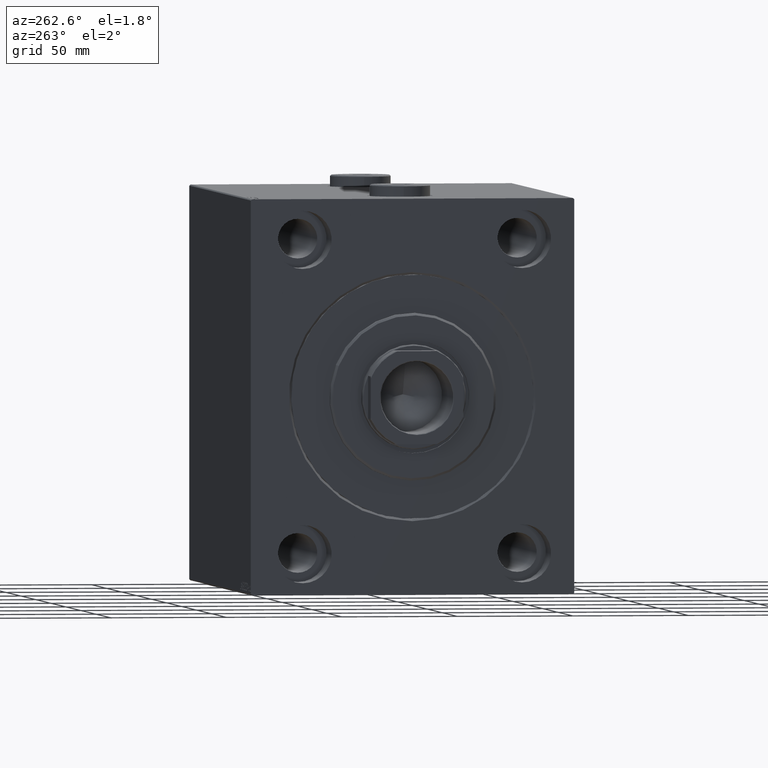
[diagram: clean part render]
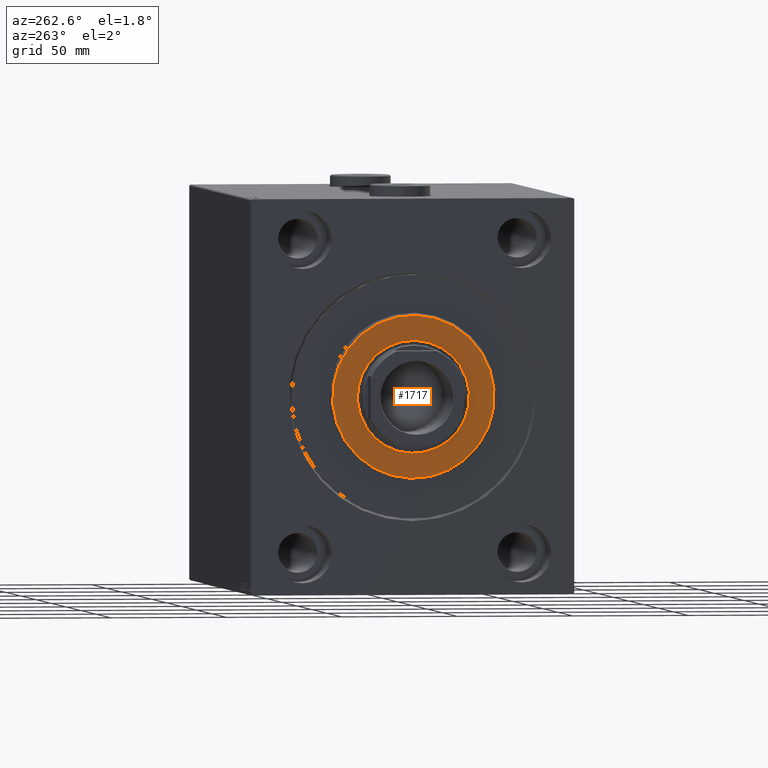
[diagram: same view with one face highlighted and labeled with its STEP entity id]
A machine part, auxiliary view. The second image highlights one B-rep face of the part: STEP entity #1717.
In plain terms, the highlighted planar face has unit normal (-1, 0, 0).
Its self-contained STEP definition (entity closure, byte-faithful):
#941 = ORIENTED_EDGE ( 'NONE', *, *, #1955, .T. ) ;
#1384 = CIRCLE ( 'NONE', #18921, 24.25000000000000000 ) ;
#1717 = ADVANCED_FACE ( 'NONE', ( #44698, #34393 ), #7119, .T. ) ;
#1955 = EDGE_CURVE ( 'NONE', #16142, #10476, #7365, .T. ) ;
#2166 = ORIENTED_EDGE ( 'NONE', *, *, #34656, .T. ) ;
#2614 = VERTEX_POINT ( 'NONE', #19961 ) ;
#4198 = ORIENTED_EDGE ( 'NONE', *, *, #41550, .T. ) ;
#4437 = DIRECTION ( 'NONE',  ( 0.000000000000000000, 0.000000000000000000, -1.000000000000000000 ) ) ;
#4666 = EDGE_CURVE ( 'NONE', #23937, #2614, #44030, .T. ) ;
#5335 = CARTESIAN_POINT ( 'NONE',  ( 3.000000000000000000, 0.000000000000000000, 35.00000000000002842 ) ) ;
#6096 = DIRECTION ( 'NONE',  ( -1.000000000000000000, 0.000000000000000000, -0.000000000000000000 ) ) ;
#6319 = DIRECTION ( 'NONE',  ( 0.000000000000000000, 0.000000000000000000, -1.000000000000000000 ) ) ;
#7119 = PLANE ( 'NONE',  #19813 ) ;
#7126 = CARTESIAN_POINT ( 'NONE',  ( 3.000000000000000000, 0.000000000000000000, 24.25000000000000000 ) ) ;
#7365 = CIRCLE ( 'NONE', #24202, 24.25000000000000000 ) ;
#8975 = EDGE_LOOP ( 'NONE', ( #9057, #4198 ) ) ;
#9057 = ORIENTED_EDGE ( 'NONE', *, *, #4666, .T. ) ;
#10476 = VERTEX_POINT ( 'NONE', #7126 ) ;
#11773 = CARTESIAN_POINT ( 'NONE',  ( 3.000000000000000000, 0.000000000000000000, 0.000000000000000000 ) ) ;
#13112 = CARTESIAN_POINT ( 'NONE',  ( 3.000000000000000000, 2.969768487932331287E-15, -24.25000000000000000 ) ) ;
#13766 = CARTESIAN_POINT ( 'NONE',  ( 3.000000000000000000, 0.000000000000000000, 0.000000000000000000 ) ) ;
#15698 = DIRECTION ( 'NONE',  ( 0.000000000000000000, 0.000000000000000000, -1.000000000000000000 ) ) ;
#16142 = VERTEX_POINT ( 'NONE', #13112 ) ;
#18187 = DIRECTION ( 'NONE',  ( 1.000000000000000000, -0.000000000000000000, 0.000000000000000000 ) ) ;
#18921 = AXIS2_PLACEMENT_3D ( 'NONE', #22306, #21644, #4437 ) ;
#19813 = AXIS2_PLACEMENT_3D ( 'NONE', #13766, #37834, #44931 ) ;
#19961 = CARTESIAN_POINT ( 'NONE',  ( 3.000000000000000000, 4.347496136973104859E-15, -35.00000000000002842 ) ) ;
#21644 = DIRECTION ( 'NONE',  ( -1.000000000000000000, 0.000000000000000000, -0.000000000000000000 ) ) ;
#22306 = CARTESIAN_POINT ( 'NONE',  ( 3.000000000000000000, 0.000000000000000000, 0.000000000000000000 ) ) ;
#23937 = VERTEX_POINT ( 'NONE', #5335 ) ;
#24202 = AXIS2_PLACEMENT_3D ( 'NONE', #37501, #6096, #6319 ) ;
#24271 = AXIS2_PLACEMENT_3D ( 'NONE', #26478, #26698, #15698 ) ;
#25076 = DIRECTION ( 'NONE',  ( 0.000000000000000000, 0.000000000000000000, -1.000000000000000000 ) ) ;
#26478 = CARTESIAN_POINT ( 'NONE',  ( 3.000000000000000000, 0.000000000000000000, 0.000000000000000000 ) ) ;
#26698 = DIRECTION ( 'NONE',  ( 1.000000000000000000, -0.000000000000000000, 0.000000000000000000 ) ) ;
#28523 = CIRCLE ( 'NONE', #40235, 35.00000000000002842 ) ;
#34393 = FACE_BOUND ( 'NONE', #39558, .T. ) ;
#34656 = EDGE_CURVE ( 'NONE', #10476, #16142, #1384, .T. ) ;
#37501 = CARTESIAN_POINT ( 'NONE',  ( 3.000000000000000000, 0.000000000000000000, 0.000000000000000000 ) ) ;
#37834 = DIRECTION ( 'NONE',  ( 1.000000000000000000, -0.000000000000000000, 0.000000000000000000 ) ) ;
#39558 = EDGE_LOOP ( 'NONE', ( #2166, #941 ) ) ;
#40235 = AXIS2_PLACEMENT_3D ( 'NONE', #11773, #18187, #25076 ) ;
#41550 = EDGE_CURVE ( 'NONE', #2614, #23937, #28523, .T. ) ;
#44030 = CIRCLE ( 'NONE', #24271, 35.00000000000002842 ) ;
#44698 = FACE_OUTER_BOUND ( 'NONE', #8975, .T. ) ;
#44931 = DIRECTION ( 'NONE',  ( 0.000000000000000000, 0.000000000000000000, -1.000000000000000000 ) ) ;